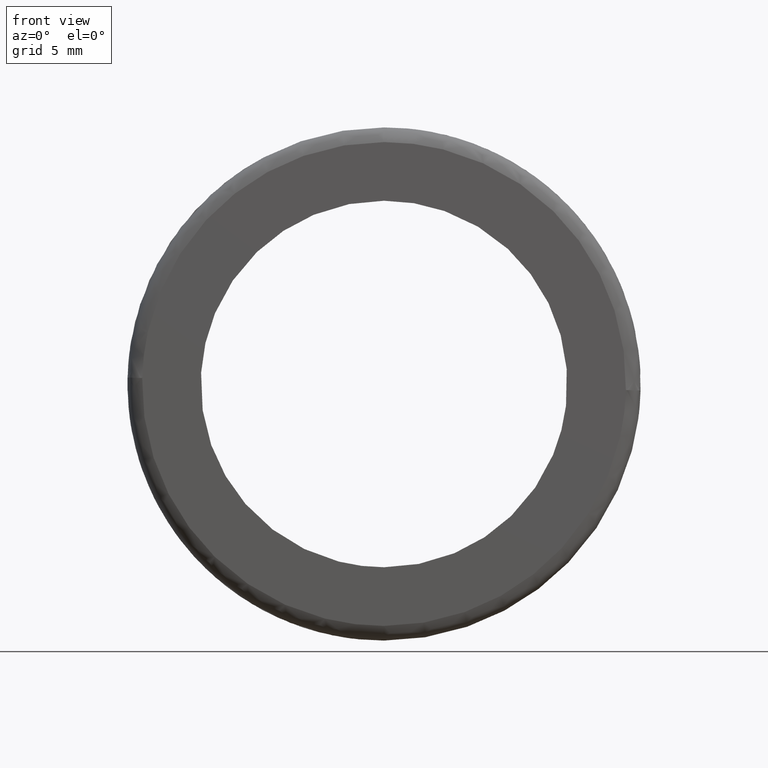
[diagram: clean part render]
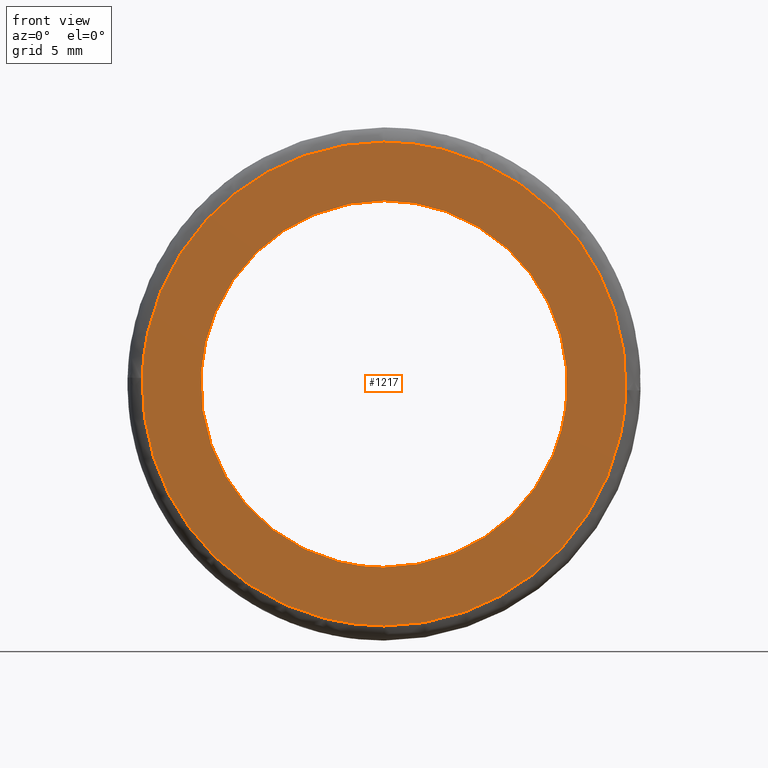
[diagram: same view with one face highlighted and labeled with its STEP entity id]
A machine part, front view. The second image highlights one B-rep face of the part: STEP entity #1217.
In plain terms, the highlighted face is a freeform B-spline surface patch.
Its self-contained STEP definition (entity closure, byte-faithful):
#697=CARTESIAN_POINT('',(14.895144555315481,-1.789399E-015,-1.770499555509084));
#698=VERTEX_POINT('',#697);
#704=CARTESIAN_POINT('',(0.0,-2.755364E-015,15.0));
#705=VERTEX_POINT('',#704);
#706=CARTESIAN_POINT('',(14.895144555315476,-1.789399E-015,-1.770499555509084));
#707=CARTESIAN_POINT('',(14.999999999999998,-2.755364E-015,-0.888354738793865));
#708=CARTESIAN_POINT('',(15.0,-2.755364E-015,-3.061516E-016));
#709=CARTESIAN_POINT('',(14.999999999999996,-2.755364E-015,14.999999999999996));
#710=CARTESIAN_POINT('',(0.0,-2.755364E-015,15.0));
#718=(BOUNDED_CURVE()B_SPLINE_CURVE(2,(#706,#707,#708,#709,#710),.UNSPECIFIED.,.F.,.U.)B_SPLINE_CURVE_WITH_KNOTS((3,2,3),(0.229562631957854,0.250000000000000,0.500000000000000),.UNSPECIFIED.)CURVE()GEOMETRIC_REPRESENTATION_ITEM()RATIONAL_B_SPLINE_CURVE((0.956027064741336,0.976056133960243,1.0,0.707106781186547,1.0))REPRESENTATION_ITEM(''));
#719=EDGE_CURVE('',#698,#705,#718,.T.);
#721=CARTESIAN_POINT('',(-14.972022853837400,-2.224227E-015,0.915713745645394));
#722=VERTEX_POINT('',#721);
#723=CARTESIAN_POINT('',(0.0,-2.755364E-015,15.0));
#724=CARTESIAN_POINT('',(-14.110604550744977,-2.755364E-015,15.0));
#725=CARTESIAN_POINT('',(-14.972022853837398,-2.224227E-015,0.915713745645394));
#733=(BOUNDED_CURVE()B_SPLINE_CURVE(2,(#723,#724,#725),.UNSPECIFIED.,.F.,.U.)B_SPLINE_CURVE_WITH_KNOTS((3,3),(0.500000000000000,0.739333127589991),.UNSPECIFIED.)CURVE()GEOMETRIC_REPRESENTATION_ITEM()RATIONAL_B_SPLINE_CURVE((1.0,0.719603799565907,0.976072396045746))REPRESENTATION_ITEM(''));
#734=EDGE_CURVE('',#705,#722,#733,.T.);
#808=CARTESIAN_POINT('',(0.0,-2.755364E-015,-15.0));
#809=VERTEX_POINT('',#808);
#810=CARTESIAN_POINT('',(-14.972022853837398,-2.224227E-015,0.915713745645394));
#811=CARTESIAN_POINT('',(-14.999999999999998,-2.755364E-015,0.458284255676304));
#812=CARTESIAN_POINT('',(-15.0,-2.755364E-015,-3.061516E-016));
#813=CARTESIAN_POINT('',(-14.999999999999996,-2.755364E-015,-14.999999999999996));
#814=CARTESIAN_POINT('',(0.0,-2.755364E-015,-15.0));
#822=(BOUNDED_CURVE()B_SPLINE_CURVE(2,(#810,#811,#812,#813,#814),.UNSPECIFIED.,.F.,.U.)B_SPLINE_CURVE_WITH_KNOTS((3,2,3),(0.739333127589991,0.750000000000000,1.0),.UNSPECIFIED.)CURVE()GEOMETRIC_REPRESENTATION_ITEM()RATIONAL_B_SPLINE_CURVE((0.976072396045746,0.987502981620640,1.0,0.707106781186547,1.0))REPRESENTATION_ITEM(''));
#823=EDGE_CURVE('',#722,#809,#822,.T.);
#825=CARTESIAN_POINT('',(0.0,-2.755364E-015,-15.0));
#826=CARTESIAN_POINT('',(13.322630467285304,-2.755364E-015,-14.999999999999996));
#827=CARTESIAN_POINT('',(14.895144555315476,-1.789399E-015,-1.770499555509084));
#835=(BOUNDED_CURVE()B_SPLINE_CURVE(2,(#825,#826,#827),.UNSPECIFIED.,.F.,.U.)B_SPLINE_CURVE_WITH_KNOTS((3,3),(0.0,0.229562631957854),.UNSPECIFIED.)CURVE()GEOMETRIC_REPRESENTATION_ITEM()RATIONAL_B_SPLINE_CURVE((1.0,0.731050647226305,0.956027064741336))REPRESENTATION_ITEM(''));
#836=EDGE_CURVE('',#809,#698,#835,.T.);
#1022=CARTESIAN_POINT('',(19.793746948737748,-1.553015E-015,-0.497575889833101));
#1023=VERTEX_POINT('',#1022);
#1037=CARTESIAN_POINT('',(0.0,-3.637081E-015,-19.800000000000001));
#1038=VERTEX_POINT('',#1037);
#1039=CARTESIAN_POINT('',(0.0,-3.637081E-015,-19.800000000000001));
#1040=CARTESIAN_POINT('',(19.308521948315054,-3.637081E-015,-19.799999999999997));
#1041=CARTESIAN_POINT('',(19.793746948737748,-1.553015E-015,-0.497575889833101));
#1049=(BOUNDED_CURVE()B_SPLINE_CURVE(2,(#1039,#1040,#1041),.UNSPECIFIED.,.F.,.U.)B_SPLINE_CURVE_WITH_KNOTS((3,3),(0.0,0.245579891769248),.UNSPECIFIED.)CURVE()GEOMETRIC_REPRESENTATION_ITEM()RATIONAL_B_SPLINE_CURVE((1.0,0.712285260095383,0.989826157680311))REPRESENTATION_ITEM(''));
#1050=EDGE_CURVE('',#1038,#1023,#1049,.T.);
#1052=CARTESIAN_POINT('',(-19.793746948737748,-1.568634E-015,0.497575889833109));
#1053=VERTEX_POINT('',#1052);
#1054=CARTESIAN_POINT('',(-19.793746948737752,-1.568634E-015,0.497575889833109));
#1055=CARTESIAN_POINT('',(-19.800000000000004,-3.637081E-015,0.248827236074597));
#1056=CARTESIAN_POINT('',(-19.800000000000001,-3.637081E-015,-3.061516E-016));
#1057=CARTESIAN_POINT('',(-19.800000000000001,-3.637081E-015,-19.800000000000001));
#1058=CARTESIAN_POINT('',(0.0,-3.637081E-015,-19.800000000000001));
#1066=(BOUNDED_CURVE()B_SPLINE_CURVE(2,(#1054,#1055,#1056,#1057,#1058),.UNSPECIFIED.,.F.,.U.)B_SPLINE_CURVE_WITH_KNOTS((3,2,3),(0.745579891769248,0.750000000000000,1.0),.UNSPECIFIED.)CURVE()GEOMETRIC_REPRESENTATION_ITEM()RATIONAL_B_SPLINE_CURVE((0.989826157680311,0.994821521091164,1.0,0.707106781186547,1.0))REPRESENTATION_ITEM(''));
#1067=EDGE_CURVE('',#1053,#1038,#1066,.T.);
#1111=CARTESIAN_POINT('',(0.0,-3.637081E-015,19.800000000000001));
#1112=VERTEX_POINT('',#1111);
#1113=CARTESIAN_POINT('',(0.0,-3.637081E-015,19.800000000000001));
#1114=CARTESIAN_POINT('',(-19.308521948315036,-3.637081E-015,19.800000000000004));
#1115=CARTESIAN_POINT('',(-19.793746948737752,-1.568634E-015,0.497575889833109));
#1123=(BOUNDED_CURVE()B_SPLINE_CURVE(2,(#1113,#1114,#1115),.UNSPECIFIED.,.F.,.U.)B_SPLINE_CURVE_WITH_KNOTS((3,3),(0.500000000000000,0.745579891769248),.UNSPECIFIED.)CURVE()GEOMETRIC_REPRESENTATION_ITEM()RATIONAL_B_SPLINE_CURVE((1.0,0.712285260095383,0.989826157680310))REPRESENTATION_ITEM(''));
#1124=EDGE_CURVE('',#1112,#1053,#1123,.T.);
#1126=CARTESIAN_POINT('',(19.793746948737745,-1.553015E-015,-0.497575889833101));
#1127=CARTESIAN_POINT('',(19.800000000000001,-3.637081E-015,-0.248827236074592));
#1128=CARTESIAN_POINT('',(19.800000000000001,-3.637081E-015,-3.061516E-016));
#1129=CARTESIAN_POINT('',(19.800000000000001,-3.637081E-015,19.800000000000001));
#1130=CARTESIAN_POINT('',(0.0,-3.637081E-015,19.800000000000001));
#1138=(BOUNDED_CURVE()B_SPLINE_CURVE(2,(#1126,#1127,#1128,#1129,#1130),.UNSPECIFIED.,.F.,.U.)B_SPLINE_CURVE_WITH_KNOTS((3,2,3),(0.245579891769248,0.250000000000000,0.500000000000000),.UNSPECIFIED.)CURVE()GEOMETRIC_REPRESENTATION_ITEM()RATIONAL_B_SPLINE_CURVE((0.989826157680311,0.994821521091165,1.0,0.707106781186547,1.0))REPRESENTATION_ITEM(''));
#1139=EDGE_CURVE('',#1023,#1112,#1138,.T.);
#1200=CARTESIAN_POINT('',(-21.771142192188400,-3.196223E-015,-21.778019038295572));
#1201=CARTESIAN_POINT('',(-21.771142192188400,-3.196223E-015,21.778017976140799));
#1202=CARTESIAN_POINT('',(21.771143254007729,-3.196223E-015,-21.778019038295572));
#1203=CARTESIAN_POINT('',(21.771143254007729,-3.196223E-015,21.778017976140799));
#1204=B_SPLINE_SURFACE_WITH_KNOTS('',1,1,((#1200,#1202),(#1201,#1203)),.UNSPECIFIED.,.F.,.F.,.U.,(2,2),(2,2),(0.0,43.556037014436363),(0.0,43.542285446196132),.UNSPECIFIED.);
#1205=ORIENTED_EDGE('',*,*,#1050,.T.);
#1206=ORIENTED_EDGE('',*,*,#1139,.T.);
#1207=ORIENTED_EDGE('',*,*,#1124,.T.);
#1208=ORIENTED_EDGE('',*,*,#1067,.T.);
#1209=EDGE_LOOP('',(#1205,#1206,#1207,#1208));
#1210=FACE_OUTER_BOUND('',#1209,.T.);
#1211=ORIENTED_EDGE('',*,*,#734,.F.);
#1212=ORIENTED_EDGE('',*,*,#719,.F.);
#1213=ORIENTED_EDGE('',*,*,#836,.F.);
#1214=ORIENTED_EDGE('',*,*,#823,.F.);
#1215=EDGE_LOOP('',(#1211,#1212,#1213,#1214));
#1216=FACE_BOUND('',#1215,.T.);
#1217=ADVANCED_FACE('',(#1210,#1216),#1204,.F.);